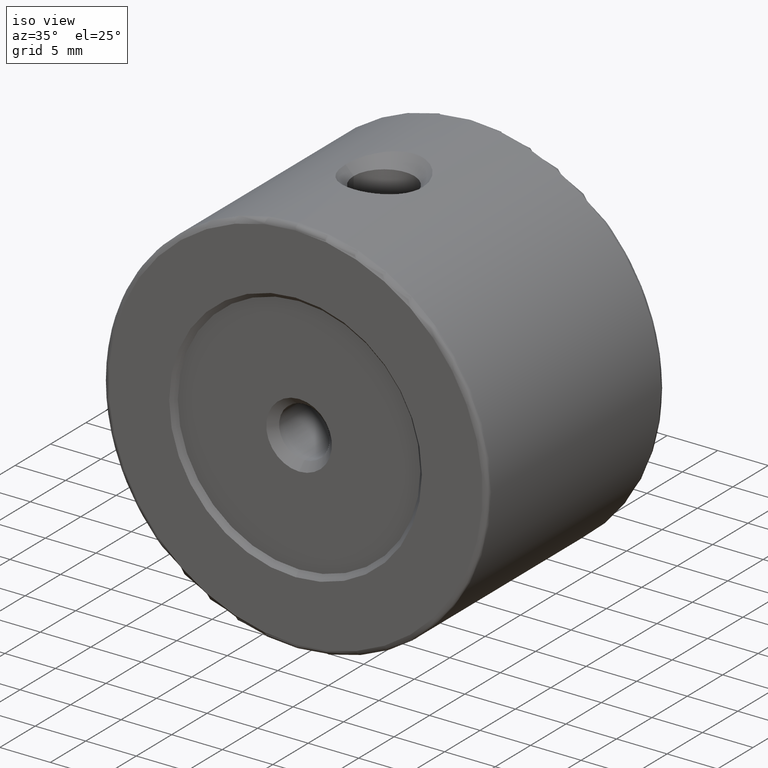
[diagram: clean part render]
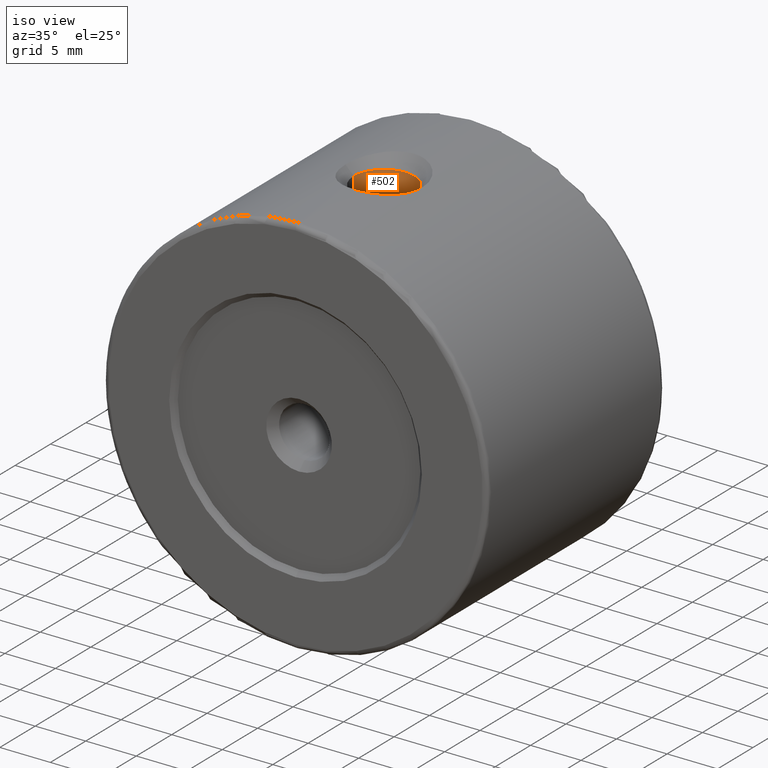
[diagram: same view with one face highlighted and labeled with its STEP entity id]
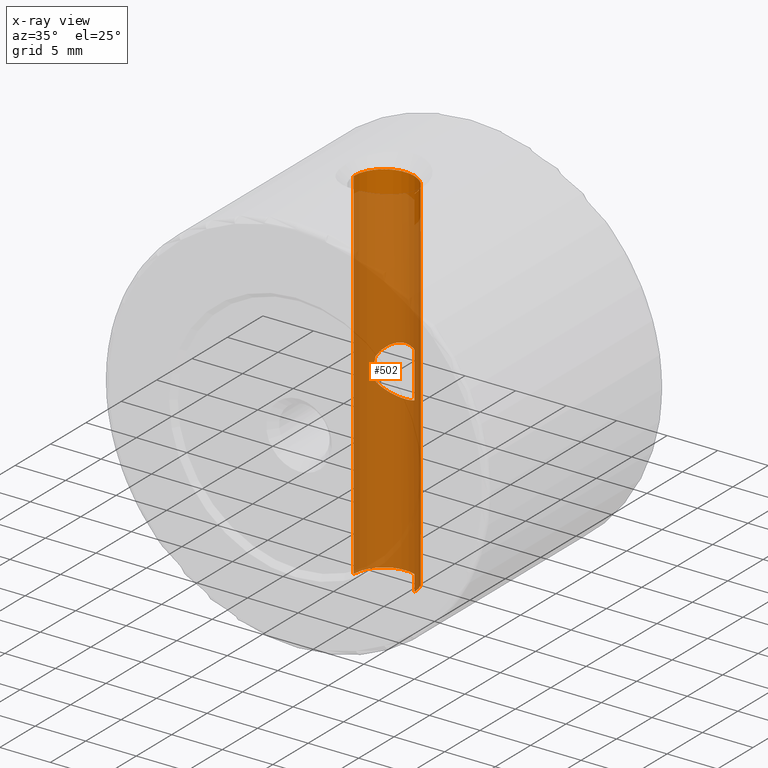
[diagram: x-ray of the same camera — body ghosted, the highlighted face saturated]
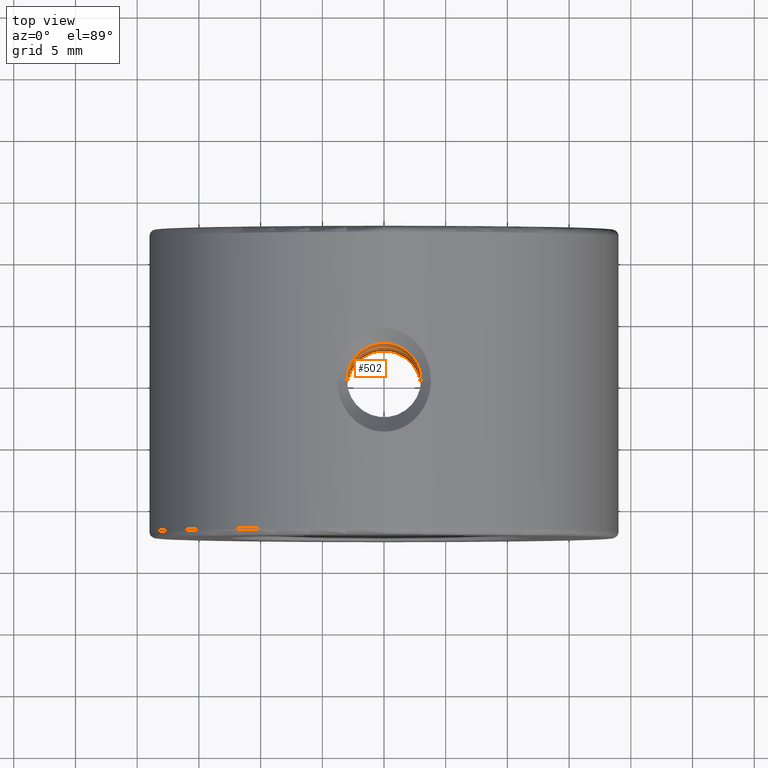
[diagram: same view with one face highlighted and labeled with its STEP entity id]
A machine part, iso view. The second image highlights one B-rep face of the part: STEP entity #502.
The next image is the same camera in x-ray: the body ghosted, the highlighted face saturated — about 93% of this face is hidden behind the body in this view.
A second angle (top view) of the same face is appended — the face is thin or edge-on in the first view.
In plain terms, the highlighted cylindrical surface (partial cylindrical patch) has radius 3 mm, axis along (-0, -0, 1).
Its self-contained STEP definition (entity closure, byte-faithful):
#7 = VERTEX_POINT ( 'NONE', #861 ) ;
#9 = CARTESIAN_POINT ( 'NONE',  ( -2.683234259809135933E-19, 3.000000000000002220, 2.499999999999993339 ) ) ;
#16 = CARTESIAN_POINT ( 'NONE',  ( -3.000000000000000444, 2.102117515721012933E-15, -19.00000000000000000 ) ) ;
#20 = CARTESIAN_POINT ( 'NONE',  ( 0.000000000000000000, 1.734723475976807094E-15, -19.00000000000000000 ) ) ;
#29 = CARTESIAN_POINT ( 'NONE',  ( 0.2463519032709926282, 3.000000000000001776, 2.499999999999993783 ) ) ;
#43 = CARTESIAN_POINT ( 'NONE',  ( 2.236067977499790693, 2.000000000000001776, -1.118033988749886021 ) ) ;
#64 = EDGE_CURVE ( 'NONE', #1090, #341, #336, .T. ) ;
#71 = EDGE_LOOP ( 'NONE', ( #749, #194, #774, #569, #929, #180 ) ) ;
#95 = EDGE_CURVE ( 'NONE', #104, #7, #497, .T. ) ;
#104 = VERTEX_POINT ( 'NONE', #43 ) ;
#112 = CARTESIAN_POINT ( 'NONE',  ( 3.000000000000000444, 1.734723475976807094E-15, -17.80000000000000426 ) ) ;
#113 = DIRECTION ( 'NONE',  ( 0.000000000000000000, 0.000000000000000000, -1.000000000000000000 ) ) ;
#126 = CARTESIAN_POINT ( 'NONE',  ( 0.2468203129010267394, 3.000000000000002220, -2.499999999999993339 ) ) ;
#129 = CARTESIAN_POINT ( 'NONE',  ( -0.9538360710712748824, 2.846605155790347563, -2.313877661997755020 ) ) ;
#144 = CARTESIAN_POINT ( 'NONE',  ( 3.000000000000000444, 1.734723475976807094E-15, -19.00000000000000000 ) ) ;
#148 = CARTESIAN_POINT ( 'NONE',  ( 2.136253638935976529, 2.111595823078936007, 1.317662665877511019 ) ) ;
#164 = VERTEX_POINT ( 'NONE', #799 ) ;
#176 = EDGE_CURVE ( 'NONE', #516, #104, #1081, .T. ) ;
#179 = CARTESIAN_POINT ( 'NONE',  ( -2.265750794165041881, 1.966813602086419754, -0.9351670985335104325 ) ) ;
#180 = ORIENTED_EDGE ( 'NONE', *, *, #64, .T. ) ;
#182 = CARTESIAN_POINT ( 'NONE',  ( -0.9572275446385900555, 2.853069453026022551, 2.321980698856141778 ) ) ;
#192 = AXIS2_PLACEMENT_3D ( 'NONE', #1072, #113, #1159 ) ;
#194 = ORIENTED_EDGE ( 'NONE', *, *, #562, .T. ) ;
#200 = ORIENTED_EDGE ( 'NONE', *, *, #1001, .F. ) ;
#204 = CARTESIAN_POINT ( 'NONE',  ( -2.236067977499790693, 2.000000000000001776, -1.118033988749886021 ) ) ;
#209 = CARTESIAN_POINT ( 'NONE',  ( 0.000000000000000000, 0.000000000000000000, -17.80000000000000426 ) ) ;
#210 = CYLINDRICAL_SURFACE ( 'NONE', #1229, 3.000000000000000444 ) ;
#229 = DIRECTION ( 'NONE',  ( 1.000000000000000000, 0.000000000000000000, 0.000000000000000000 ) ) ;
#271 = ORIENTED_EDGE ( 'NONE', *, *, #478, .F. ) ;
#295 = CARTESIAN_POINT ( 'NONE',  ( -2.014336392841420853, 2.230882584698193671, 1.496716606106513359 ) ) ;
#309 = CARTESIAN_POINT ( 'NONE',  ( 0.8413777129252045794, 2.882043396049474460, 2.357237983147574045 ) ) ;
#317 = CARTESIAN_POINT ( 'NONE',  ( 2.014336392841420853, 2.230882584698193671, -1.496716606106512248 ) ) ;
#323 = CARTESIAN_POINT ( 'NONE',  ( -0.4958573226517090093, 2.968246601219496572, -2.462128139552318906 ) ) ;
#330 = CARTESIAN_POINT ( 'NONE',  ( 1.554011645489084215, 2.575012369328410600, -1.971445216049370730 ) ) ;
#334 = VERTEX_POINT ( 'NONE', #813 ) ;
#335 = CARTESIAN_POINT ( 'NONE',  ( 1.723530934719771590, 2.462440142762420514, 1.823955691304339988 ) ) ;
#336 = B_SPLINE_CURVE_WITH_KNOTS ( 'NONE', 3,
 ( #1037, #179, #844, #1231, #377, #753, #1135, #660 ),
 .UNSPECIFIED., .F., .F.,
 ( 4, 2, 2, 4 ),
 ( 0.0006973098300073794645, 0.001261882989972310919, 0.001826456149937242049, 0.002955602469867104742 ),
 .UNSPECIFIED. ) ;
#341 = VERTEX_POINT ( 'NONE', #1197 ) ;
#350 = EDGE_CURVE ( 'NONE', #341, #334, #1023, .T. ) ;
#369 = CARTESIAN_POINT ( 'NONE',  ( -0.4968632756126676320, 2.968066165258530731, 2.461911010459706173 ) ) ;
#377 = CARTESIAN_POINT ( 'NONE',  ( -2.325684977686214960, 1.895043382336572657, -0.1837170138502647043 ) ) ;
#402 = CARTESIAN_POINT ( 'NONE',  ( 2.325684977686215404, 1.895043382336572213, 0.1837170138502650651 ) ) ;
#406 = B_SPLINE_CURVE_WITH_KNOTS ( 'NONE', 3,
 ( #979, #968, #323, #872, #129, #703, #776, #886, #593, #1164, #786, #204 ),
 .UNSPECIFIED., .F., .F.,
 ( 4, 2, 2, 2, 2, 4 ),
 ( 0.002958474851319572128, 0.003696689933615288776, 0.004065797474763146666, 0.004434905015911005423, 0.005173120098206722070, 0.005911335180502439585 ),
 .UNSPECIFIED. ) ;
#407 = CARTESIAN_POINT ( 'NONE',  ( 1.166858131160448009, 2.766117543632883535, 2.214108214815535103 ) ) ;
#419 = CARTESIAN_POINT ( 'NONE',  ( 2.236067977499790693, 2.000000000000001776, 1.118033988749886021 ) ) ;
#429 = CIRCLE ( 'NONE', #192, 3.000000000000000444 ) ;
#432 = CARTESIAN_POINT ( 'NONE',  ( 1.554324731545523308, 2.574903854782643720, 1.971315282996884521 ) ) ;
#447 = CARTESIAN_POINT ( 'NONE',  ( -2.236067977499790693, 2.000000000000001776, -1.118033988749886021 ) ) ;
#478 = EDGE_CURVE ( 'NONE', #932, #164, #429, .T. ) ;
#485 = EDGE_CURVE ( 'NONE', #7, #1090, #406, .T. ) ;
#492 = VECTOR ( 'NONE', #697, 1000.000000000000000 ) ;
#497 = B_SPLINE_CURVE_WITH_KNOTS ( 'NONE', 3,
 ( #970, #715, #317, #514, #330, #699, #1085, #510, #126, #1095 ),
 .UNSPECIFIED., .F., .F.,
 ( 4, 2, 2, 2, 4 ),
 ( 5.438330430075829581E-18, 0.0007396187128298970436, 0.001479237425659788666, 0.002218856138489680614, 0.002958474851319572128 ),
 .UNSPECIFIED. ) ;
#500 = FACE_OUTER_BOUND ( 'NONE', #669, .T. ) ;
#502 = ADVANCED_FACE ( 'NONE', ( #500, #792 ), #210, .F. ) ;
#510 = CARTESIAN_POINT ( 'NONE',  ( 0.4968632756126675210, 2.968066165258530731, -2.461911010459706173 ) ) ;
#514 = CARTESIAN_POINT ( 'NONE',  ( 1.724254120167197701, 2.461978054191694021, -1.823364865189308182 ) ) ;
#516 = VERTEX_POINT ( 'NONE', #875 ) ;
#526 = B_SPLINE_CURVE_WITH_KNOTS ( 'NONE', 3,
 ( #868, #29, #696, #309, #1065, #407, #911, #432, #335, #1103, #148, #614 ),
 .UNSPECIFIED., .F., .F.,
 ( 4, 2, 2, 2, 2, 4 ),
 ( 0.002958474851319572562, 0.003696689933615288776, 0.004065797474763146666, 0.004434905015911005423, 0.005173120098206722070, 0.005911335180502439585 ),
 .UNSPECIFIED. ) ;
#538 = DIRECTION ( 'NONE',  ( -1.000000000000000000, 0.000000000000000000, 0.000000000000000000 ) ) ;
#562 = EDGE_CURVE ( 'NONE', #334, #516, #526, .T. ) ;
#569 = ORIENTED_EDGE ( 'NONE', *, *, #95, .T. ) ;
#571 = CARTESIAN_POINT ( 'NONE',  ( -1.173434396263506763, 2.769240439935778397, 2.219144013322555953 ) ) ;
#575 = DIRECTION ( 'NONE',  ( -0.000000000000000000, -0.000000000000000000, 1.000000000000000000 ) ) ;
#593 = CARTESIAN_POINT ( 'NONE',  ( -1.723530934719771590, 2.462440142762420514, -1.823955691304339988 ) ) ;
#595 = CARTESIAN_POINT ( 'NONE',  ( 2.318162274358642083, 1.904382482050318792, 0.3746186154998294993 ) ) ;
#606 = CARTESIAN_POINT ( 'NONE',  ( 2.288134762744605144, 1.940357770030942897, 0.7500323391420867791 ) ) ;
#614 = CARTESIAN_POINT ( 'NONE',  ( 2.236067977499790693, 2.000000000000001776, 1.118033988749886021 ) ) ;
#616 = CARTESIAN_POINT ( 'NONE',  ( 2.265750794165041437, 1.966813602086418866, 0.9351670985335103214 ) ) ;
#659 = CARTESIAN_POINT ( 'NONE',  ( -2.136067975189936963, 2.111803401457486906, 1.318033993369589929 ) ) ;
#660 = CARTESIAN_POINT ( 'NONE',  ( -2.236067977499790249, 2.000000000000001776, 1.118033988749886021 ) ) ;
#669 = EDGE_LOOP ( 'NONE', ( #200, #1101, #1142, #271 ) ) ;
#674 = CARTESIAN_POINT ( 'NONE',  ( -1.724254120167197257, 2.461978054191694021, 1.823364865189308848 ) ) ;
#685 = CARTESIAN_POINT ( 'NONE',  ( -3.000000000000000444, 2.102117515721012933E-15, 17.80000000000000426 ) ) ;
#696 = CARTESIAN_POINT ( 'NONE',  ( 0.4958573226517091204, 2.968246601219496572, 2.462128139552318462 ) ) ;
#697 = DIRECTION ( 'NONE',  ( -0.000000000000000000, -0.000000000000000000, 1.000000000000000000 ) ) ;
#699 = CARTESIAN_POINT ( 'NONE',  ( 1.173434396263506763, 2.769240439935777509, -2.219144013322556397 ) ) ;
#700 = LINE ( 'NONE', #16, #1051 ) ;
#703 = CARTESIAN_POINT ( 'NONE',  ( -1.166858131160448009, 2.766117543632883535, -2.214108214815535103 ) ) ;
#715 = CARTESIAN_POINT ( 'NONE',  ( 2.136067975189936963, 2.111803401457486906, -1.318033993369589929 ) ) ;
#749 = ORIENTED_EDGE ( 'NONE', *, *, #350, .T. ) ;
#753 = CARTESIAN_POINT ( 'NONE',  ( -2.325323532578035923, 1.895486906926725279, 0.3810183374628939301 ) ) ;
#774 = ORIENTED_EDGE ( 'NONE', *, *, #176, .T. ) ;
#776 = CARTESIAN_POINT ( 'NONE',  ( -1.267567939136776234, 2.721173520338182605, -2.157840088767077003 ) ) ;
#779 = CARTESIAN_POINT ( 'NONE',  ( 2.236067977499790693, 2.000000000000001776, -1.118033988749886021 ) ) ;
#785 = CIRCLE ( 'NONE', #940, 3.000000000000000444 ) ;
#786 = CARTESIAN_POINT ( 'NONE',  ( -2.136253638935976529, 2.111595823078936007, -1.317662665877511019 ) ) ;
#792 = FACE_BOUND ( 'NONE', #71, .T. ) ;
#799 = CARTESIAN_POINT ( 'NONE',  ( 3.000000000000000444, 0.000000000000000000, 17.80000000000000426 ) ) ;
#813 = CARTESIAN_POINT ( 'NONE',  ( -2.683234259809135933E-19, 3.000000000000002220, 2.499999999999993339 ) ) ;
#839 = CARTESIAN_POINT ( 'NONE',  ( -0.2468203129010264618, 3.000000000000002220, 2.499999999999993339 ) ) ;
#844 = CARTESIAN_POINT ( 'NONE',  ( -2.288134762744605588, 1.940357770030943119, -0.7500323391420866681 ) ) ;
#861 = CARTESIAN_POINT ( 'NONE',  ( 3.064300232335816030E-16, 3.000000000000002220, -2.499999999999993339 ) ) ;
#868 = CARTESIAN_POINT ( 'NONE',  ( -2.683234259809135933E-19, 3.000000000000002220, 2.499999999999993339 ) ) ;
#871 = DIRECTION ( 'NONE',  ( -0.000000000000000000, -0.000000000000000000, -1.000000000000000000 ) ) ;
#872 = CARTESIAN_POINT ( 'NONE',  ( -0.8413777129252039133, 2.882043396049474460, -2.357237983147574489 ) ) ;
#875 = CARTESIAN_POINT ( 'NONE',  ( 2.236067977499790693, 2.000000000000001776, 1.118033988749886021 ) ) ;
#886 = CARTESIAN_POINT ( 'NONE',  ( -1.554324731545523308, 2.574903854782643720, -1.971315282996884521 ) ) ;
#891 = VERTEX_POINT ( 'NONE', #112 ) ;
#911 = CARTESIAN_POINT ( 'NONE',  ( 1.267567939136776234, 2.721173520338182605, 2.157840088767077003 ) ) ;
#929 = ORIENTED_EDGE ( 'NONE', *, *, #485, .T. ) ;
#932 = VERTEX_POINT ( 'NONE', #685 ) ;
#935 = EDGE_CURVE ( 'NONE', #1097, #891, #785, .T. ) ;
#940 = AXIS2_PLACEMENT_3D ( 'NONE', #209, #871, #538 ) ;
#968 = CARTESIAN_POINT ( 'NONE',  ( -0.2463519032709922951, 3.000000000000001776, -2.499999999999993783 ) ) ;
#970 = CARTESIAN_POINT ( 'NONE',  ( 2.236067977499790693, 2.000000000000001776, -1.118033988749886021 ) ) ;
#979 = CARTESIAN_POINT ( 'NONE',  ( 3.064300232335816030E-16, 3.000000000000002220, -2.499999999999993339 ) ) ;
#982 = CARTESIAN_POINT ( 'NONE',  ( 2.325323532578037256, 1.895486906926724835, -0.3810183374628932085 ) ) ;
#996 = LINE ( 'NONE', #144, #492 ) ;
#1001 = EDGE_CURVE ( 'NONE', #1097, #932, #700, .T. ) ;
#1023 = B_SPLINE_CURVE_WITH_KNOTS ( 'NONE', 3,
 ( #1138, #659, #295, #674, #1041, #571, #182, #369, #839, #9 ),
 .UNSPECIFIED., .F., .F.,
 ( 4, 2, 2, 2, 4 ),
 ( 5.587587132013240531E-18, 0.0007396187128298973689, 0.001479237425659789100, 0.002218856138489681048, 0.002958474851319572562 ),
 .UNSPECIFIED. ) ;
#1037 = CARTESIAN_POINT ( 'NONE',  ( -2.236067977499790693, 2.000000000000001776, -1.118033988749886021 ) ) ;
#1041 = CARTESIAN_POINT ( 'NONE',  ( -1.554011645489084437, 2.575012369328410600, 1.971445216049370286 ) ) ;
#1051 = VECTOR ( 'NONE', #575, 1000.000000000000000 ) ;
#1065 = CARTESIAN_POINT ( 'NONE',  ( 0.9538360710712748824, 2.846605155790347563, 2.313877661997755020 ) ) ;
#1072 = CARTESIAN_POINT ( 'NONE',  ( 0.000000000000000000, 0.000000000000000000, 17.80000000000000426 ) ) ;
#1074 = CARTESIAN_POINT ( 'NONE',  ( 2.295496546955154038, 1.933556839446122000, -0.7519124778141486054 ) ) ;
#1081 = B_SPLINE_CURVE_WITH_KNOTS ( 'NONE', 3,
 ( #419, #616, #606, #595, #402, #982, #1074, #779 ),
 .UNSPECIFIED., .F., .F.,
 ( 4, 2, 2, 4 ),
 ( 0.0006973098300073763203, 0.001261882989972307450, 0.001826456149937238579, 0.002955602469867100839 ),
 .UNSPECIFIED. ) ;
#1083 = DIRECTION ( 'NONE',  ( -0.000000000000000000, -0.000000000000000000, 1.000000000000000000 ) ) ;
#1085 = CARTESIAN_POINT ( 'NONE',  ( 0.9572275446385900555, 2.853069453026022995, -2.321980698856141778 ) ) ;
#1090 = VERTEX_POINT ( 'NONE', #447 ) ;
#1095 = CARTESIAN_POINT ( 'NONE',  ( 3.064300232335816030E-16, 3.000000000000002220, -2.499999999999993339 ) ) ;
#1097 = VERTEX_POINT ( 'NONE', #1154 ) ;
#1101 = ORIENTED_EDGE ( 'NONE', *, *, #935, .T. ) ;
#1103 = CARTESIAN_POINT ( 'NONE',  ( 2.012803512559376617, 2.232216915860208761, 1.498664494343593834 ) ) ;
#1135 = CARTESIAN_POINT ( 'NONE',  ( -2.295496546955153150, 1.933556839446122000, 0.7519124778141496046 ) ) ;
#1138 = CARTESIAN_POINT ( 'NONE',  ( -2.236067977499790249, 2.000000000000001776, 1.118033988749886021 ) ) ;
#1142 = ORIENTED_EDGE ( 'NONE', *, *, #1166, .T. ) ;
#1154 = CARTESIAN_POINT ( 'NONE',  ( -3.000000000000000444, 2.102117515721012933E-15, -17.80000000000000426 ) ) ;
#1159 = DIRECTION ( 'NONE',  ( 1.000000000000000000, 0.000000000000000000, 0.000000000000000000 ) ) ;
#1164 = CARTESIAN_POINT ( 'NONE',  ( -2.012803512559376617, 2.232216915860208761, -1.498664494343593834 ) ) ;
#1166 = EDGE_CURVE ( 'NONE', #891, #164, #996, .T. ) ;
#1197 = CARTESIAN_POINT ( 'NONE',  ( -2.236067977499790249, 2.000000000000001776, 1.118033988749886021 ) ) ;
#1229 = AXIS2_PLACEMENT_3D ( 'NONE', #20, #1083, #229 ) ;
#1231 = CARTESIAN_POINT ( 'NONE',  ( -2.318162274358641639, 1.904382482050318792, -0.3746186154998293327 ) ) ;